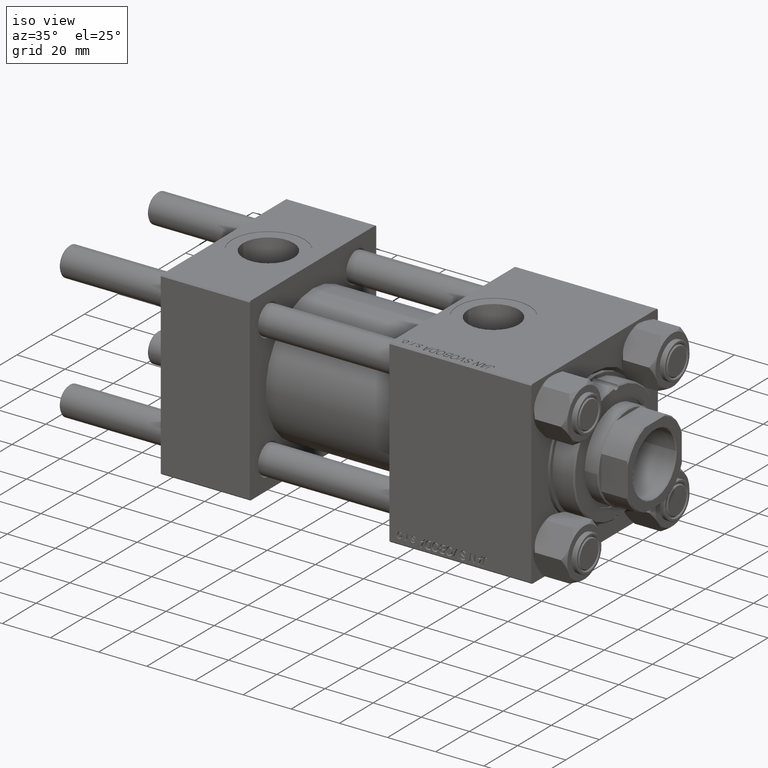
[diagram: clean part render]
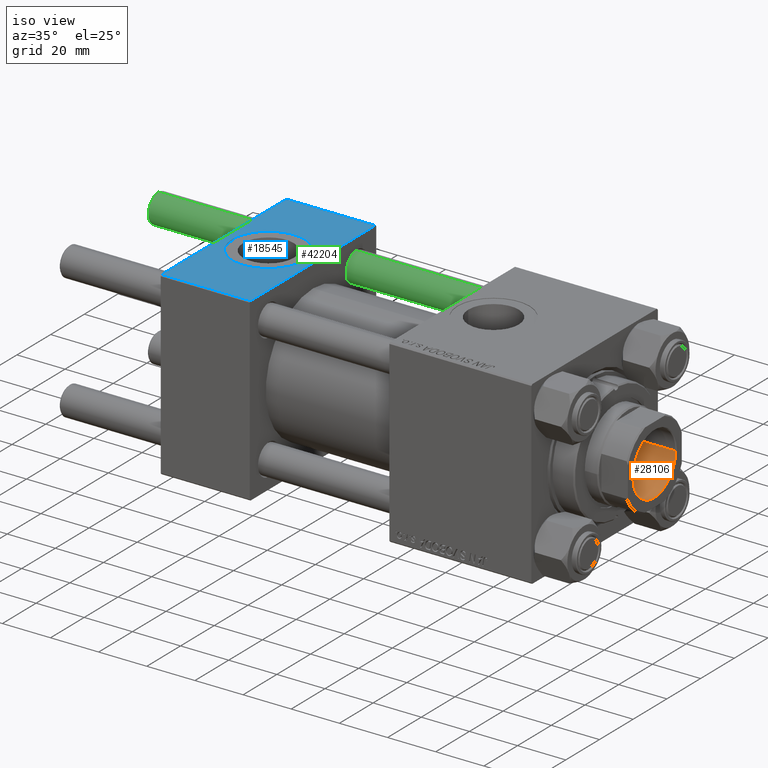
[diagram: same view with three faces highlighted in distinct colors, each labeled with its STEP entity id]
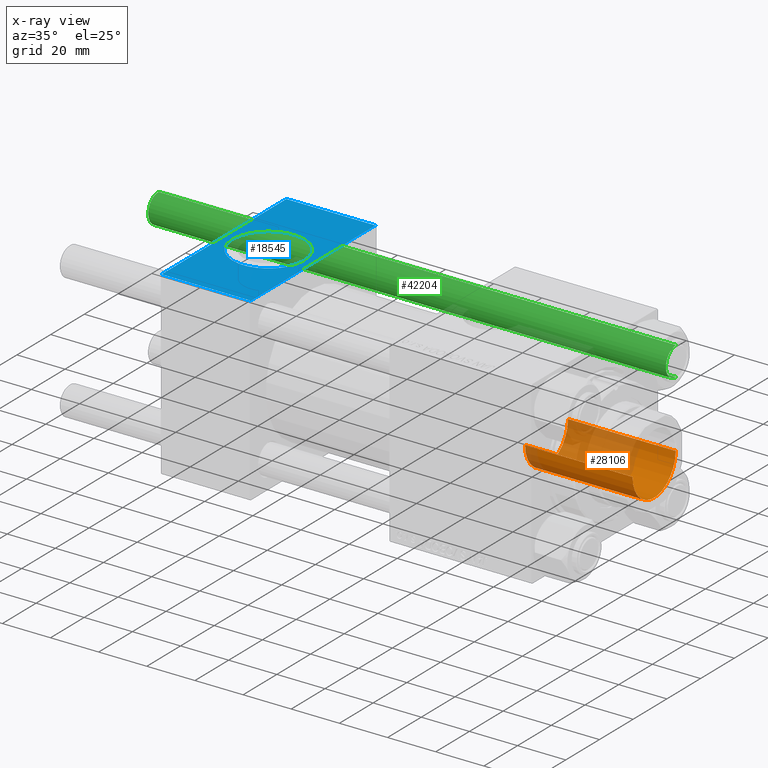
[diagram: x-ray of the same camera — body ghosted, the three highlighted faces saturated]
A machine part, iso view with three faces highlighted in distinct colors.
The next image is the same camera in x-ray (body ghosted, the three faces saturated) — at least one of them is partly hidden behind the body in this view.
Their STEP definitions:

[orange] entity #28106 — the highlighted cylindrical surface (partial cylindrical patch) has radius 12.75 mm, axis along (1, 0, -0).
#213 = ORIENTED_EDGE ( 'NONE', *, *, #16243, .F. ) ;
#1152 = AXIS2_PLACEMENT_3D ( 'NONE', #9743, #48644, #1411 ) ;
#1411 = DIRECTION ( 'NONE',  ( 1.000000000000000000, 0.000000000000000000, 0.000000000000000000 ) ) ;
#1954 = DIRECTION ( 'NONE',  ( 1.000000000000000000, 0.000000000000000000, 0.000000000000000000 ) ) ;
#3601 = VERTEX_POINT ( 'NONE', #24314 ) ;
#3992 = ORIENTED_EDGE ( 'NONE', *, *, #37060, .T. ) ;
#5511 = EDGE_CURVE ( 'NONE', #33646, #25895, #13262, .T. ) ;
#5687 = DIRECTION ( 'NONE',  ( -0.000000000000000000, -0.000000000000000000, 1.000000000000000000 ) ) ;
#7052 = AXIS2_PLACEMENT_3D ( 'NONE', #44868, #32978, #40814 ) ;
#8175 = ORIENTED_EDGE ( 'NONE', *, *, #10914, .F. ) ;
#9743 = CARTESIAN_POINT ( 'NONE',  ( 0.000000000000000000, 0.000000000000000000, 142.0000000000000284 ) ) ;
#10857 = EDGE_LOOP ( 'NONE', ( #213, #8175, #42974, #3992 ) ) ;
#10914 = EDGE_CURVE ( 'NONE', #33646, #19156, #20081, .T. ) ;
#11150 = VECTOR ( 'NONE', #5687, 1000.000000000000000 ) ;
#13262 = LINE ( 'NONE', #28674, #11150 ) ;
#15681 = LINE ( 'NONE', #27299, #47723 ) ;
#16243 = EDGE_CURVE ( 'NONE', #19156, #3601, #15681, .T. ) ;
#17067 = FACE_OUTER_BOUND ( 'NONE', #10857, .T. ) ;
#19156 = VERTEX_POINT ( 'NONE', #35915 ) ;
#20081 = CIRCLE ( 'NONE', #30585, 12.74999999999998934 ) ;
#20742 = CIRCLE ( 'NONE', #7052, 12.74999999999999112 ) ;
#21460 = CARTESIAN_POINT ( 'NONE',  ( 12.74999999999999112, 0.000000000000000000, 141.7000000000000171 ) ) ;
#21892 = CARTESIAN_POINT ( 'NONE',  ( 0.000000000000000000, 0.000000000000000000, 97.00000000000001421 ) ) ;
#24314 = CARTESIAN_POINT ( 'NONE',  ( -12.74999999999999112, 1.561424668912874125E-15, 141.7000000000000171 ) ) ;
#25895 = VERTEX_POINT ( 'NONE', #21460 ) ;
#27299 = CARTESIAN_POINT ( 'NONE',  ( -12.74999999999999112, 1.561424668912874125E-15, 142.0000000000000284 ) ) ;
#28106 = ADVANCED_FACE ( 'NONE', ( #17067 ), #33222, .F. ) ;
#28674 = CARTESIAN_POINT ( 'NONE',  ( 12.74999999999999112, 0.000000000000000000, 142.0000000000000284 ) ) ;
#30585 = AXIS2_PLACEMENT_3D ( 'NONE', #21892, #41105, #1954 ) ;
#30590 = DIRECTION ( 'NONE',  ( -0.000000000000000000, -0.000000000000000000, 1.000000000000000000 ) ) ;
#32978 = DIRECTION ( 'NONE',  ( 0.000000000000000000, 0.000000000000000000, 1.000000000000000000 ) ) ;
#33222 = CYLINDRICAL_SURFACE ( 'NONE', #1152, 12.74999999999999112 ) ;
#33646 = VERTEX_POINT ( 'NONE', #38202 ) ;
#35915 = CARTESIAN_POINT ( 'NONE',  ( -12.74999999999998934, 1.561424668912873928E-15, 97.00000000000001421 ) ) ;
#37060 = EDGE_CURVE ( 'NONE', #25895, #3601, #20742, .T. ) ;
#38202 = CARTESIAN_POINT ( 'NONE',  ( 12.74999999999998934, 0.000000000000000000, 97.00000000000001421 ) ) ;
#40814 = DIRECTION ( 'NONE',  ( 1.000000000000000000, 0.000000000000000000, 0.000000000000000000 ) ) ;
#41105 = DIRECTION ( 'NONE',  ( -0.000000000000000000, -0.000000000000000000, 1.000000000000000000 ) ) ;
#42974 = ORIENTED_EDGE ( 'NONE', *, *, #5511, .T. ) ;
#44868 = CARTESIAN_POINT ( 'NONE',  ( 0.000000000000000000, 0.000000000000000000, 141.7000000000000171 ) ) ;
#47723 = VECTOR ( 'NONE', #30590, 1000.000000000000000 ) ;
#48644 = DIRECTION ( 'NONE',  ( -0.000000000000000000, -0.000000000000000000, 1.000000000000000000 ) ) ;

[blue] entity #18545 — the highlighted planar face has unit normal (0, 0, -1).
#6 = CIRCLE ( 'NONE', #11338, 15.00000000000000355 ) ;
#51 = CARTESIAN_POINT ( 'NONE',  ( 0.000000000000000000, 37.49999999999999289, 37.50000000000000000 ) ) ;
#744 = FACE_OUTER_BOUND ( 'NONE', #24881, .T. ) ;
#1192 = DIRECTION ( 'NONE',  ( 1.000000000000000000, 0.000000000000000000, 0.000000000000000000 ) ) ;
#1494 = VECTOR ( 'NONE', #1192, 1000.000000000000000 ) ;
#1928 = ORIENTED_EDGE ( 'NONE', *, *, #41231, .F. ) ;
#5514 = CARTESIAN_POINT ( 'NONE',  ( 37.00000000000000000, -37.00000000000000711, 37.49999999999999289 ) ) ;
#5943 = EDGE_LOOP ( 'NONE', ( #43635, #21166 ) ) ;
#6242 = EDGE_CURVE ( 'NONE', #17861, #44445, #46674, .T. ) ;
#7533 = CARTESIAN_POINT ( 'NONE',  ( 18.50000000000000000, -5.204170427930421283E-15, 37.50000000000000000 ) ) ;
#8586 = ORIENTED_EDGE ( 'NONE', *, *, #6242, .T. ) ;
#11154 = AXIS2_PLACEMENT_3D ( 'NONE', #7533, #41897, #11314 ) ;
#11314 = DIRECTION ( 'NONE',  ( 1.000000000000000000, 0.000000000000000000, 0.000000000000000000 ) ) ;
#11338 = AXIS2_PLACEMENT_3D ( 'NONE', #24341, #44057, #39755 ) ;
#15467 = DIRECTION ( 'NONE',  ( 0.000000000000000000, -1.000000000000000000, -9.251858538542971581E-17 ) ) ;
#17096 = AXIS2_PLACEMENT_3D ( 'NONE', #28014, #31304, #35855 ) ;
#17861 = VERTEX_POINT ( 'NONE', #24835 ) ;
#18545 = ADVANCED_FACE ( 'NONE', ( #20179, #744 ), #28515, .F. ) ;
#18627 = ORIENTED_EDGE ( 'NONE', *, *, #36133, .T. ) ;
#19251 = LINE ( 'NONE', #51, #26589 ) ;
#20179 = FACE_BOUND ( 'NONE', #5943, .T. ) ;
#21166 = ORIENTED_EDGE ( 'NONE', *, *, #48183, .F. ) ;
#21389 = VERTEX_POINT ( 'NONE', #36509 ) ;
#22044 = VERTEX_POINT ( 'NONE', #25688 ) ;
#24341 = CARTESIAN_POINT ( 'NONE',  ( 18.50000000000000000, -5.204170427930421283E-15, 37.50000000000000000 ) ) ;
#24835 = CARTESIAN_POINT ( 'NONE',  ( 0.000000000000000000, -37.00000000000000711, 37.49999999999999289 ) ) ;
#24881 = EDGE_LOOP ( 'NONE', ( #32140, #8586, #1928, #18627 ) ) ;
#25688 = CARTESIAN_POINT ( 'NONE',  ( 3.499999999999997780, -3.367200229209391300E-15, 37.50000000000000000 ) ) ;
#26589 = VECTOR ( 'NONE', #15467, 1000.000000000000000 ) ;
#27387 = DIRECTION ( 'NONE',  ( 0.000000000000000000, -1.000000000000000000, -9.251858538542971581E-17 ) ) ;
#28014 = CARTESIAN_POINT ( 'NONE',  ( 37.00000000000000000, 37.49999999999999289, 37.50000000000000000 ) ) ;
#28515 = PLANE ( 'NONE',  #17096 ) ;
#31304 = DIRECTION ( 'NONE',  ( 0.000000000000000000, 9.251858538542971581E-17, -1.000000000000000000 ) ) ;
#31782 = VERTEX_POINT ( 'NONE', #37946 ) ;
#32140 = ORIENTED_EDGE ( 'NONE', *, *, #46247, .T. ) ;
#33661 = CARTESIAN_POINT ( 'NONE',  ( 0.000000000000000000, 36.99999999999999289, 37.50000000000000000 ) ) ;
#33736 = CIRCLE ( 'NONE', #11154, 15.00000000000000355 ) ;
#35050 = CARTESIAN_POINT ( 'NONE',  ( 37.00000000000000000, -37.00000000000000711, 37.49999999999999289 ) ) ;
#35855 = DIRECTION ( 'NONE',  ( 0.000000000000000000, 1.000000000000000000, 9.251858538542971581E-17 ) ) ;
#36133 = EDGE_CURVE ( 'NONE', #21389, #42425, #49567, .T. ) ;
#36509 = CARTESIAN_POINT ( 'NONE',  ( 37.00000000000000000, 36.99999999999999289, 37.50000000000000000 ) ) ;
#36911 = CARTESIAN_POINT ( 'NONE',  ( 0.000000000000000000, 36.99999999999999289, 37.50000000000000000 ) ) ;
#37946 = CARTESIAN_POINT ( 'NONE',  ( 33.50000000000000000, -5.204170427930421283E-15, 37.50000000000000000 ) ) ;
#39518 = EDGE_CURVE ( 'NONE', #31782, #22044, #33736, .T. ) ;
#39755 = DIRECTION ( 'NONE',  ( 1.000000000000000000, 0.000000000000000000, 0.000000000000000000 ) ) ;
#41231 = EDGE_CURVE ( 'NONE', #21389, #44445, #41812, .T. ) ;
#41812 = LINE ( 'NONE', #46591, #45939 ) ;
#41897 = DIRECTION ( 'NONE',  ( 0.000000000000000000, 0.000000000000000000, 1.000000000000000000 ) ) ;
#42425 = VERTEX_POINT ( 'NONE', #36911 ) ;
#42504 = VECTOR ( 'NONE', #49811, 1000.000000000000000 ) ;
#43635 = ORIENTED_EDGE ( 'NONE', *, *, #39518, .F. ) ;
#44057 = DIRECTION ( 'NONE',  ( 0.000000000000000000, 0.000000000000000000, 1.000000000000000000 ) ) ;
#44445 = VERTEX_POINT ( 'NONE', #5514 ) ;
#45939 = VECTOR ( 'NONE', #27387, 1000.000000000000000 ) ;
#46247 = EDGE_CURVE ( 'NONE', #42425, #17861, #19251, .T. ) ;
#46591 = CARTESIAN_POINT ( 'NONE',  ( 37.00000000000000000, 37.49999999999999289, 37.50000000000000000 ) ) ;
#46674 = LINE ( 'NONE', #35050, #1494 ) ;
#48183 = EDGE_CURVE ( 'NONE', #22044, #31782, #6, .T. ) ;
#49567 = LINE ( 'NONE', #33661, #42504 ) ;
#49811 = DIRECTION ( 'NONE',  ( -1.000000000000000000, 0.000000000000000000, 0.000000000000000000 ) ) ;

[green] entity #42204 — the highlighted cylindrical surface (edge-blend (fillet) strip) has radius 6 mm, axis along (-1, -0, -0).
#89 = EDGE_CURVE ( 'NONE', #27406, #48000, #39157, .T. ) ;
#1513 = CARTESIAN_POINT ( 'NONE',  ( 6.000000000000000888, 7.347880794884120722E-16, 216.0000000000000000 ) ) ;
#3944 = DIRECTION ( 'NONE',  ( 1.000000000000000000, 0.000000000000000000, 0.000000000000000000 ) ) ;
#4252 = EDGE_CURVE ( 'NONE', #37546, #48000, #22399, .T. ) ;
#4781 = AXIS2_PLACEMENT_3D ( 'NONE', #11433, #26845, #37972 ) ;
#5081 = AXIS2_PLACEMENT_3D ( 'NONE', #30452, #30955, #11263 ) ;
#7400 = FACE_OUTER_BOUND ( 'NONE', #23699, .T. ) ;
#8365 = CARTESIAN_POINT ( 'NONE',  ( -6.000000000000000888, 0.000000000000000000, 215.5000000000000284 ) ) ;
#9146 = ORIENTED_EDGE ( 'NONE', *, *, #24621, .T. ) ;
#10020 = ORIENTED_EDGE ( 'NONE', *, *, #4252, .T. ) ;
#11263 = DIRECTION ( 'NONE',  ( 1.000000000000000000, 0.000000000000000000, 0.000000000000000000 ) ) ;
#11433 = CARTESIAN_POINT ( 'NONE',  ( 0.000000000000000000, 0.000000000000000000, 216.0000000000000000 ) ) ;
#14742 = CIRCLE ( 'NONE', #5081, 6.000000000000000888 ) ;
#21281 = DIRECTION ( 'NONE',  ( -0.000000000000000000, -0.000000000000000000, -1.000000000000000000 ) ) ;
#21588 = CARTESIAN_POINT ( 'NONE',  ( 6.000000000000000888, 7.347880794884120722E-16, 0.5000000000000004441 ) ) ;
#22008 = VERTEX_POINT ( 'NONE', #8365 ) ;
#22399 = CIRCLE ( 'NONE', #27236, 6.000000000000000888 ) ;
#23699 = EDGE_LOOP ( 'NONE', ( #42951, #9146, #32272, #10020 ) ) ;
#24621 = EDGE_CURVE ( 'NONE', #27406, #22008, #14742, .T. ) ;
#26845 = DIRECTION ( 'NONE',  ( -0.000000000000000000, -0.000000000000000000, -1.000000000000000000 ) ) ;
#27236 = AXIS2_PLACEMENT_3D ( 'NONE', #45893, #38552, #3944 ) ;
#27406 = VERTEX_POINT ( 'NONE', #46351 ) ;
#30375 = CYLINDRICAL_SURFACE ( 'NONE', #4781, 6.000000000000000888 ) ;
#30452 = CARTESIAN_POINT ( 'NONE',  ( 0.000000000000000000, 0.000000000000000000, 215.5000000000000284 ) ) ;
#30955 = DIRECTION ( 'NONE',  ( 0.000000000000000000, 0.000000000000000000, -1.000000000000000000 ) ) ;
#31834 = DIRECTION ( 'NONE',  ( -0.000000000000000000, -0.000000000000000000, -1.000000000000000000 ) ) ;
#32272 = ORIENTED_EDGE ( 'NONE', *, *, #33455, .T. ) ;
#32661 = LINE ( 'NONE', #40497, #47259 ) ;
#33455 = EDGE_CURVE ( 'NONE', #22008, #37546, #32661, .T. ) ;
#37546 = VERTEX_POINT ( 'NONE', #42892 ) ;
#37972 = DIRECTION ( 'NONE',  ( -1.000000000000000000, 0.000000000000000000, 0.000000000000000000 ) ) ;
#38552 = DIRECTION ( 'NONE',  ( -0.000000000000000000, -0.000000000000000000, 1.000000000000000000 ) ) ;
#39157 = LINE ( 'NONE', #1513, #47016 ) ;
#40497 = CARTESIAN_POINT ( 'NONE',  ( -6.000000000000000888, 0.000000000000000000, 216.0000000000000000 ) ) ;
#42204 = ADVANCED_FACE ( 'NONE', ( #7400 ), #30375, .T. ) ;
#42892 = CARTESIAN_POINT ( 'NONE',  ( -6.000000000000000888, 0.000000000000000000, 0.5000000000000004441 ) ) ;
#42951 = ORIENTED_EDGE ( 'NONE', *, *, #89, .F. ) ;
#45893 = CARTESIAN_POINT ( 'NONE',  ( 0.000000000000000000, 0.000000000000000000, 0.5000000000000004441 ) ) ;
#46351 = CARTESIAN_POINT ( 'NONE',  ( 6.000000000000000888, 7.347880794884120722E-16, 215.5000000000000284 ) ) ;
#47016 = VECTOR ( 'NONE', #31834, 1000.000000000000000 ) ;
#47259 = VECTOR ( 'NONE', #21281, 1000.000000000000000 ) ;
#48000 = VERTEX_POINT ( 'NONE', #21588 ) ;